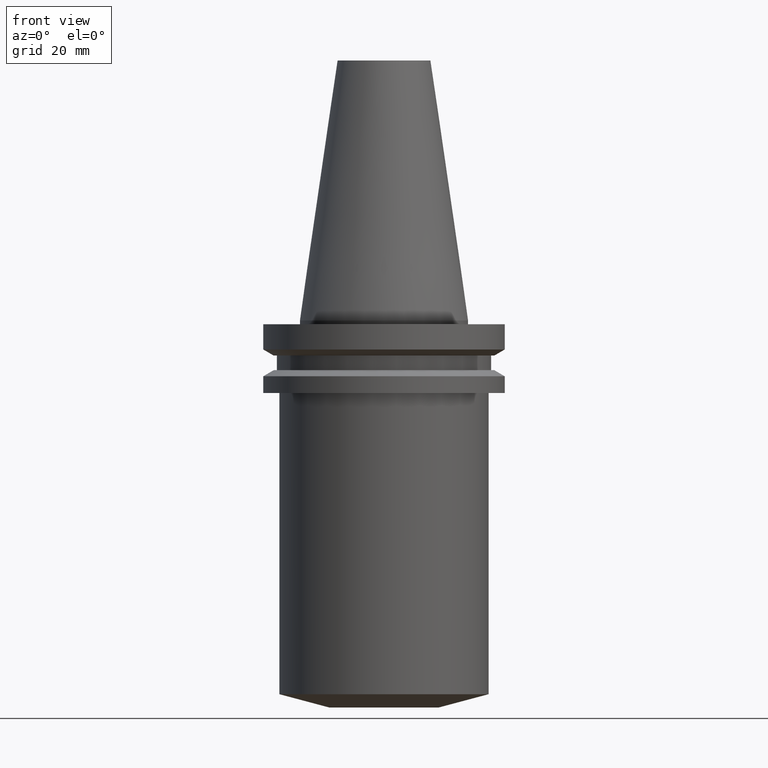
[diagram: clean part render]
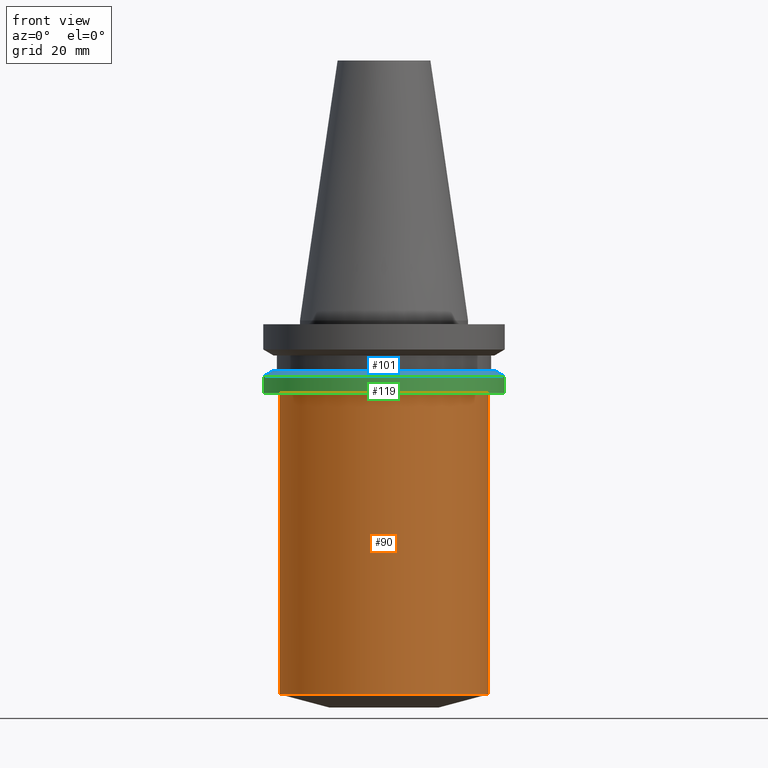
[diagram: same view with three faces highlighted in distinct colors, each labeled with its STEP entity id]
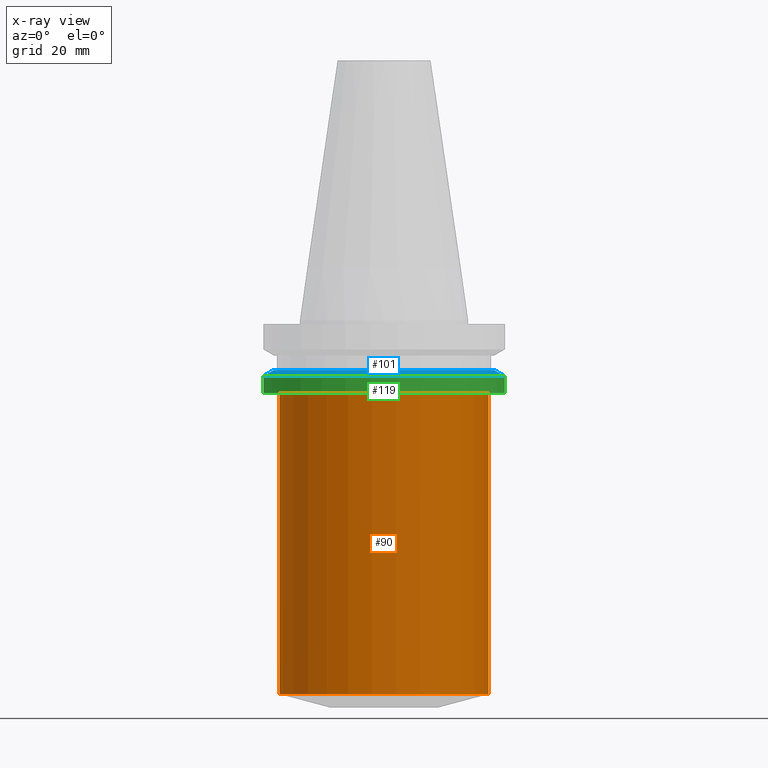
[diagram: x-ray of the same camera — body ghosted, the three highlighted faces saturated]
A machine part, front view with three faces highlighted in distinct colors.
The next image is the same camera in x-ray (body ghosted, the three faces saturated) — at least one of them is partly hidden behind the body in this view.
Their STEP definitions:

[orange] entity #90 — the highlighted cylindrical surface (bore or boss wall) has radius 27.5 mm, axis along (0, 0, -1).
#64=EDGE_CURVE('Unnamed[1]',#162,#162,#163,.T.);
#82=EDGE_CURVE('Unnamed[1]',#189,#189,#190,.T.);
#90=ADVANCED_FACE('Unnamed[1]',(#201,#202),#203,.T.);
#162=VERTEX_POINT('',#291);
#163=CIRCLE('',#292,27.4999999999247);
#189=VERTEX_POINT('',#325);
#190=CIRCLE('',#326,27.5000000000047);
#201=FACE_BOUND('',#340,.T.);
#202=FACE_BOUND('',#341,.T.);
#203=CYLINDRICAL_SURFACE('',#342,27.4999999999647);
#291=CARTESIAN_POINT('',(6.00791271112047E-015,27.4999999999247,-98.1166604984134));
#292=AXIS2_PLACEMENT_3D('',#435,#436,#437);
#325=CARTESIAN_POINT('',(1.16647607618785E-015,27.5000000000047,-19.05));
#326=AXIS2_PLACEMENT_3D('',#466,#467,#468);
#340=EDGE_LOOP('',(#479));
#341=EDGE_LOOP('',(#480));
#342=AXIS2_PLACEMENT_3D('',#481,#482,#483);
#435=CARTESIAN_POINT('',(6.00791271112047E-015,1.20158254222409E-014,-98.1166604984134));
#436=DIRECTION('',(6.12323399573677E-017,1.22464679914735E-016,-1.0));
#437=DIRECTION('',(-1.23259516440783E-032,1.0,1.22464679914735E-016));
#466=CARTESIAN_POINT('',(1.16647607618785E-015,2.33295215237571E-015,-19.05));
#467=DIRECTION('',(6.12323399573677E-017,1.22464679914735E-016,-1.0));
#468=DIRECTION('',(-1.23259516440783E-032,1.0,1.22464679914735E-016));
#479=ORIENTED_EDGE('',*,*,#64,.F.);
#480=ORIENTED_EDGE('',*,*,#82,.T.);
#481=CARTESIAN_POINT('',(3.58719439365416E-015,7.17438878730833E-015,-58.5833302492067));
#482=DIRECTION('',(6.12323399573677E-017,1.22464679914735E-016,-1.0));
#483=DIRECTION('',(-1.23259516440783E-032,1.0,1.22464679914735E-016));

[blue] entity #101 — the highlighted conical surface has half-angle 60 deg.
#60=EDGE_CURVE('Unnamed[1]',#156,#156,#157,.T.);
#87=EDGE_CURVE('Unnamed[1]',#197,#197,#198,.T.);
#101=ADVANCED_FACE('Unnamed[1]',(#219,#220),#221,.T.);
#156=VERTEX_POINT('',#283);
#157=CIRCLE('',#284,28.95591319);
#197=VERTEX_POINT('',#335);
#198=CIRCLE('',#336,31.75);
#219=FACE_BOUND('',#362,.T.);
#220=FACE_BOUND('',#363,.T.);
#221=CONICAL_SURFACE('',#364,30.352956595,1.04719755170464);
#283=CARTESIAN_POINT('',(7.98469713044073E-016,28.95591319,-13.04));
#284=AXIS2_PLACEMENT_3D('',#429,#430,#431);
#335=CARTESIAN_POINT('',(8.97247689112643E-016,31.75,-14.65316677));
#336=AXIS2_PLACEMENT_3D('',#475,#476,#477);
#362=EDGE_LOOP('',(#500));
#363=EDGE_LOOP('',(#501));
#364=AXIS2_PLACEMENT_3D('',#502,#503,#504);
#429=CARTESIAN_POINT('',(7.98469713044074E-016,1.59693942608815E-015,-13.04));
#430=DIRECTION('',(6.12323399573677E-017,1.22464679914735E-016,-1.0));
#431=DIRECTION('',(-1.23259516440783E-032,1.0,1.22464679914735E-016));
#475=CARTESIAN_POINT('',(8.97247689112643E-016,1.79449537822529E-015,-14.65316677));
#476=DIRECTION('',(6.12323399573677E-017,1.22464679914735E-016,-1.0));
#477=DIRECTION('',(-1.23259516440783E-032,1.0,1.22464679914735E-016));
#500=ORIENTED_EDGE('',*,*,#87,.F.);
#501=ORIENTED_EDGE('',*,*,#60,.T.);
#502=CARTESIAN_POINT('',(8.47858701078359E-016,1.69571740215672E-015,-13.846583385));
#503=DIRECTION('',(6.12323399573677E-017,1.22464679914735E-016,-1.0));
#504=DIRECTION('',(-1.23259516440783E-032,1.0,1.22464679914735E-016));

[green] entity #119 — the highlighted cylindrical surface (bore or boss wall) has radius 31.75 mm, axis along (0, 0, -1).
#87=EDGE_CURVE('Unnamed[1]',#197,#197,#198,.T.);
#111=EDGE_CURVE('Unnamed[1]',#236,#236,#237,.T.);
#119=ADVANCED_FACE('Unnamed[1]',(#246,#247),#248,.T.);
#197=VERTEX_POINT('',#335);
#198=CIRCLE('',#336,31.75);
#236=VERTEX_POINT('',#383);
#237=CIRCLE('',#384,31.75);
#246=FACE_BOUND('',#395,.T.);
#247=FACE_BOUND('',#396,.T.);
#248=CYLINDRICAL_SURFACE('',#397,31.75);
#335=CARTESIAN_POINT('',(8.97247689112643E-016,31.75,-14.65316677));
#336=AXIS2_PLACEMENT_3D('',#475,#476,#477);
#383=CARTESIAN_POINT('',(1.16647607618785E-015,31.75,-19.05));
#384=AXIS2_PLACEMENT_3D('',#520,#521,#522);
#395=EDGE_LOOP('',(#528));
#396=EDGE_LOOP('',(#529));
#397=AXIS2_PLACEMENT_3D('',#530,#531,#532);
#475=CARTESIAN_POINT('',(8.97247689112643E-016,1.79449537822529E-015,-14.65316677));
#476=DIRECTION('',(6.12323399573677E-017,1.22464679914735E-016,-1.0));
#477=DIRECTION('',(-1.23259516440783E-032,1.0,1.22464679914735E-016));
#520=CARTESIAN_POINT('',(1.16647607618785E-015,2.33295215237571E-015,-19.05));
#521=DIRECTION('',(6.12323399573677E-017,1.22464679914735E-016,-1.0));
#522=DIRECTION('',(-1.23259516440783E-032,1.0,1.22464679914735E-016));
#528=ORIENTED_EDGE('',*,*,#111,.F.);
#529=ORIENTED_EDGE('',*,*,#87,.T.);
#530=CARTESIAN_POINT('',(1.03186188265025E-015,2.0637237653005E-015,-16.851583385));
#531=DIRECTION('',(6.12323399573677E-017,1.22464679914735E-016,-1.0));
#532=DIRECTION('',(-1.23259516440783E-032,1.0,1.22464679914735E-016));